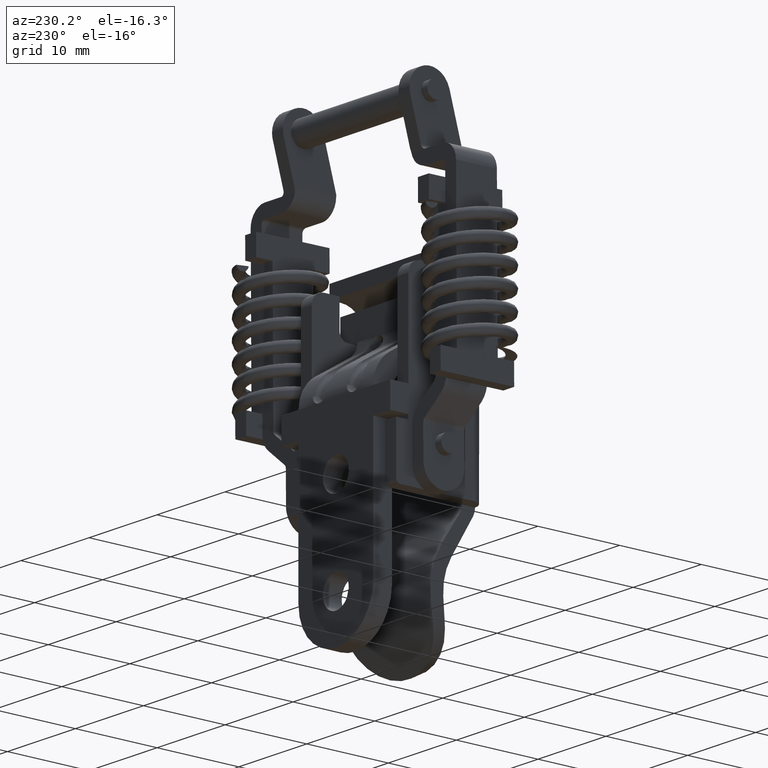
[diagram: clean part render]
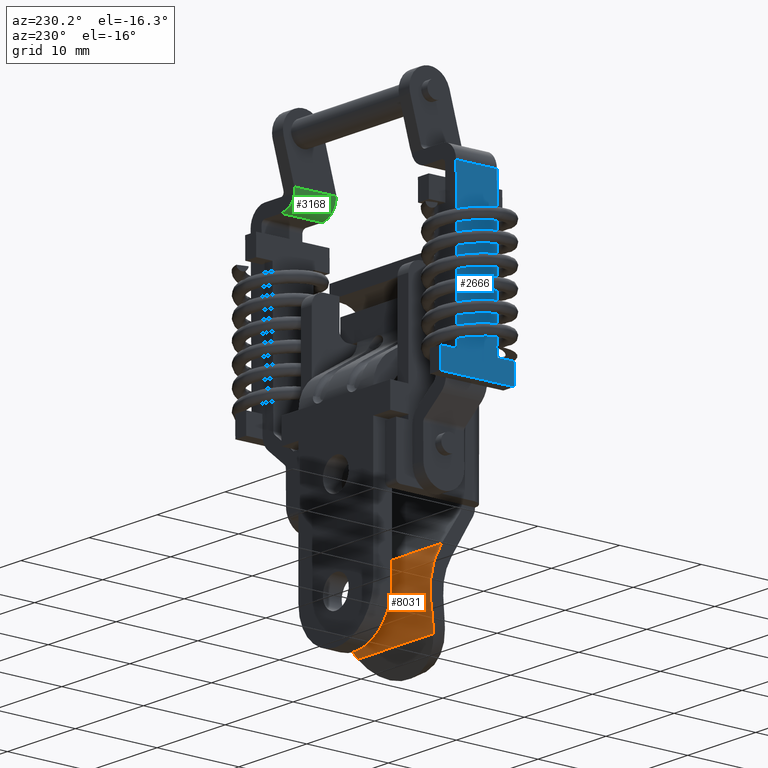
[diagram: same view with three faces highlighted in distinct colors, each labeled with its STEP entity id]
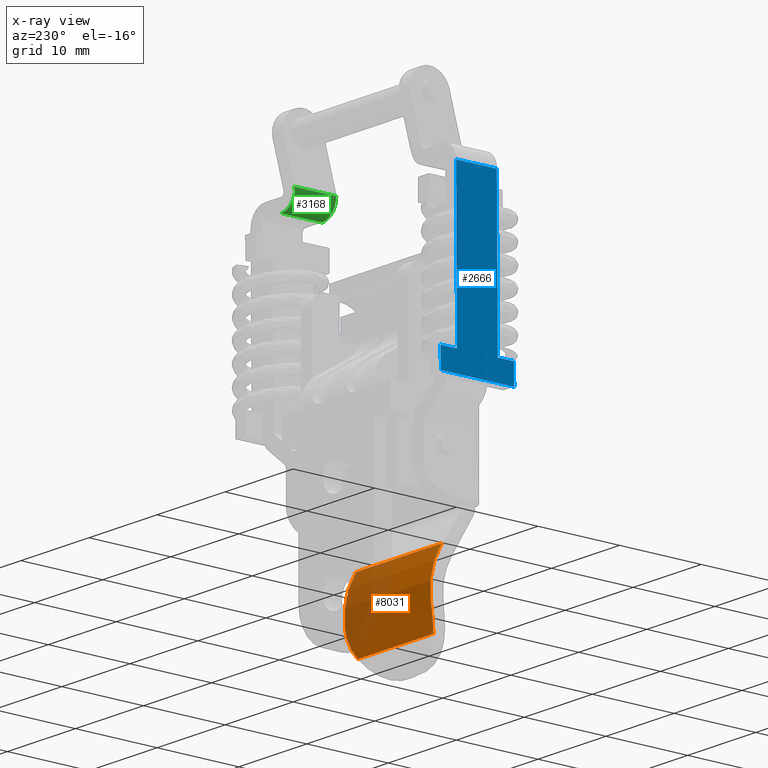
[diagram: x-ray of the same camera — body ghosted, the three highlighted faces saturated]
A machine part, auxiliary view with three faces highlighted in distinct colors.
The next image is the same camera in x-ray (body ghosted, the three faces saturated) — at least one of them is partly hidden behind the body in this view.
Their STEP definitions:

[orange] entity #8031 — the highlighted face is a freeform B-spline surface patch.
#7801=CARTESIAN_POINT('',(-3.283650800035020,6.300000000000000,-48.546751897235403));
#7802=VERTEX_POINT('',#7801);
#7808=CARTESIAN_POINT('',(-4.209000000000000,5.567243773099740,-51.392000000000003));
#7809=VERTEX_POINT('',#7808);
#7810=CARTESIAN_POINT('',(-4.209000000000000,5.567243773099740,-51.392000000000003));
#7811=CARTESIAN_POINT('',(-4.099980144908136,5.690109737714369,-51.187250329294123));
#7812=CARTESIAN_POINT('',(-3.996962484143927,5.797065620105241,-50.973829538286722));
#7813=CARTESIAN_POINT('',(-3.805472892213296,5.980570554895376,-50.529144598358272));
#7814=CARTESIAN_POINT('',(-3.716988584572358,6.057114529691956,-50.297883592218518));
#7815=CARTESIAN_POINT('',(-3.597238106038665,6.149206634351274,-49.936786550611622));
#7816=CARTESIAN_POINT('',(-3.559375151777827,6.176170126808919,-49.813606749439863));
#7817=CARTESIAN_POINT('',(-3.489283104112605,6.221852761140492,-49.565669008393712));
#7818=CARTESIAN_POINT('',(-3.456957871477868,6.240661053950343,-49.440688129181659));
#7819=CARTESIAN_POINT('',(-3.368272165083353,6.285507069354040,-49.062734353842409));
#7820=CARTESIAN_POINT('',(-3.320185256696174,6.299999999999998,-48.806757421483169));
#7821=CARTESIAN_POINT('',(-3.283650800035020,6.300000000000000,-48.546751897235403));
#7822=B_SPLINE_CURVE_WITH_KNOTS('',3,(#7810,#7811,#7812,#7813,#7814,#7815,#7816,#7817,#7818,#7819,#7820,#7821),.UNSPECIFIED.,.F.,.U.,(4,2,2,2,2,4),(0.0,0.250000000000003,0.500000000000006,0.625000000000005,0.750000000000003,1.0),.UNSPECIFIED.);
#7823=EDGE_CURVE('',#7809,#7802,#7822,.T.);
#7825=CARTESIAN_POINT('',(-4.209000000000000,-5.567243773099700,-51.392000000000003));
#7826=VERTEX_POINT('',#7825);
#7842=CARTESIAN_POINT('',(-3.283650800035020,-6.300000000000000,-48.546751897235403));
#7843=VERTEX_POINT('',#7842);
#7844=CARTESIAN_POINT('',(-3.283650800035020,-6.300000000000000,-48.546751897235403));
#7845=CARTESIAN_POINT('',(-3.320176788773138,-6.299999999999998,-48.806697157639952));
#7846=CARTESIAN_POINT('',(-3.368136890847287,-6.285510691900595,-49.061821797387140));
#7847=CARTESIAN_POINT('',(-3.485488667315838,-6.226297927023934,-49.562611167016541));
#7848=CARTESIAN_POINT('',(-3.554886054947209,-6.181585102689521,-49.808275953788417));
#7849=CARTESIAN_POINT('',(-3.674322108771538,-6.090017612181408,-50.169607822043702));
#7850=CARTESIAN_POINT('',(-3.716858662499530,-6.055249740474745,-50.289255863961003));
#7851=CARTESIAN_POINT('',(-3.805721367804488,-5.978181977921386,-50.523005372465221));
#7852=CARTESIAN_POINT('',(-3.852108535058014,-5.935851530413216,-50.637356497556951));
#7853=CARTESIAN_POINT('',(-3.996573652063844,-5.797493368032329,-50.973098593636330));
#7854=CARTESIAN_POINT('',(-4.099952302425077,-5.690141116342938,-51.187198038459293));
#7855=CARTESIAN_POINT('',(-4.209000000000000,-5.567243773099750,-51.392000000000003));
#7856=B_SPLINE_CURVE_WITH_KNOTS('',3,(#7844,#7845,#7846,#7847,#7848,#7849,#7850,#7851,#7852,#7853,#7854,#7855),.UNSPECIFIED.,.F.,.U.,(4,2,2,2,2,4),(0.0,0.249999999999997,0.499999999999994,0.624999999999995,0.749999999999997,1.0),.UNSPECIFIED.);
#7857=EDGE_CURVE('',#7843,#7826,#7856,.T.);
#7899=CARTESIAN_POINT('',(-4.620010834749680,-6.300000000000000,-42.616314338922599));
#7900=VERTEX_POINT('',#7899);
#7901=CARTESIAN_POINT('',(-3.283650800035020,-6.300000000000000,-48.546751897235403));
#7902=CARTESIAN_POINT('',(-2.831522888872942,-6.300000000000000,-45.329083829552431));
#7903=CARTESIAN_POINT('',(-4.620010834749678,-6.300000000000000,-42.616314338922599));
#7911=(BOUNDED_CURVE()B_SPLINE_CURVE(2,(#7901,#7902,#7903),.UNSPECIFIED.,.F.,.U.)CURVE()GEOMETRIC_REPRESENTATION_ITEM()QUASI_UNIFORM_CURVE()RATIONAL_B_SPLINE_CURVE((1.0,0.935460185949328,1.0))REPRESENTATION_ITEM(''));
#7912=EDGE_CURVE('',#7843,#7900,#7911,.T.);
#7952=CARTESIAN_POINT('',(-4.620010834749680,6.300000000000000,-42.616314338922599));
#7953=VERTEX_POINT('',#7952);
#7959=CARTESIAN_POINT('',(-3.283650800035020,6.300000000000000,-48.546751897235403));
#7960=CARTESIAN_POINT('',(-2.831522888872942,6.300000000000000,-45.329083829552431));
#7961=CARTESIAN_POINT('',(-4.620010834749678,6.300000000000000,-42.616314338922599));
#7969=(BOUNDED_CURVE()B_SPLINE_CURVE(2,(#7959,#7960,#7961),.UNSPECIFIED.,.F.,.U.)CURVE()GEOMETRIC_REPRESENTATION_ITEM()QUASI_UNIFORM_CURVE()RATIONAL_B_SPLINE_CURVE((1.0,0.935460185949328,1.0))REPRESENTATION_ITEM(''));
#7970=EDGE_CURVE('',#7802,#7953,#7969,.T.);
#7997=CARTESIAN_POINT('',(-4.620010834749680,6.300000000000000,-42.616314338922599));
#7998=CARTESIAN_POINT('',(-4.620010834749680,-6.300000000000000,-42.616314338922599));
#7999=QUASI_UNIFORM_CURVE('',1,(#7997,#7998),.UNSPECIFIED.,.F.,.U.);
#8000=EDGE_CURVE('',#7953,#7900,#7999,.T.);
#8005=CARTESIAN_POINT('',(-4.795722837605682,6.615000000000001,-42.359995827983290));
#8006=CARTESIAN_POINT('',(-4.795722837605682,-6.622875000000001,-42.359995827983290));
#8007=CARTESIAN_POINT('',(-1.529054539235270,6.615000000000001,-46.945324491567185));
#8008=CARTESIAN_POINT('',(-1.529054539235270,-6.622875000000001,-46.945324491567185));
#8009=CARTESIAN_POINT('',(-4.424776802226448,6.615000000000002,-51.773487009573365));
#8010=CARTESIAN_POINT('',(-4.424776802226448,-6.622875000000001,-51.773487009573365));
#8018=(BOUNDED_SURFACE()B_SPLINE_SURFACE(1,2,((#8005,#8007,#8009),(#8006,#8008,#8010)),.UNSPECIFIED.,.F.,.F.,.U.)B_SPLINE_SURFACE_WITH_KNOTS((2,2),(3,3),(0.0,13.237875000000001),(0.0,10.258528761009559),.UNSPECIFIED.)GEOMETRIC_REPRESENTATION_ITEM()RATIONAL_B_SPLINE_SURFACE(((1.0,0.833234961517973,0.991811326706241),(1.0,0.833234961517973,0.991811326706241)))REPRESENTATION_ITEM('')SURFACE());
#8019=CARTESIAN_POINT('',(-4.209000000000000,5.567243773099740,-51.392000000000003));
#8020=CARTESIAN_POINT('',(-4.209000000000000,-5.567243773099700,-51.392000000000003));
#8021=QUASI_UNIFORM_CURVE('',1,(#8019,#8020),.UNSPECIFIED.,.F.,.U.);
#8022=EDGE_CURVE('',#7809,#7826,#8021,.T.);
#8023=ORIENTED_EDGE('',*,*,#8022,.F.);
#8024=ORIENTED_EDGE('',*,*,#7823,.T.);
#8025=ORIENTED_EDGE('',*,*,#7970,.T.);
#8026=ORIENTED_EDGE('',*,*,#8000,.T.);
#8027=ORIENTED_EDGE('',*,*,#7912,.F.);
#8028=ORIENTED_EDGE('',*,*,#7857,.T.);
#8029=EDGE_LOOP('',(#8023,#8024,#8025,#8026,#8027,#8028));
#8030=FACE_OUTER_BOUND('',#8029,.T.);
#8031=ADVANCED_FACE('',(#8030),#8018,.T.);

[blue] entity #2666 — the highlighted face is a freeform B-spline surface patch.
#1992=CARTESIAN_POINT('',(1.000002172528972,15.100000000000000,-7.978975607681000));
#1993=VERTEX_POINT('',#1992);
#2009=CARTESIAN_POINT('',(-3.999997827471070,15.100000000000000,-7.978975607681000));
#2010=VERTEX_POINT('',#2009);
#2011=CARTESIAN_POINT('',(-3.999997827471070,15.100000000000000,-7.978975607681000));
#2012=CARTESIAN_POINT('',(1.000002172528972,15.100000000000000,-7.978975607681000));
#2013=QUASI_UNIFORM_CURVE('',1,(#2011,#2012),.UNSPECIFIED.,.F.,.U.);
#2014=EDGE_CURVE('',#2010,#1993,#2013,.T.);
#2291=CARTESIAN_POINT('',(1.000002172528972,15.100000000000000,-26.479055035836300));
#2292=VERTEX_POINT('',#2291);
#2298=CARTESIAN_POINT('',(1.000002172528972,15.100000000000000,-26.479055035836300));
#2299=CARTESIAN_POINT('',(1.000002172528972,15.100000000000000,-7.978975607681000));
#2300=QUASI_UNIFORM_CURVE('',1,(#2298,#2299),.UNSPECIFIED.,.F.,.U.);
#2301=EDGE_CURVE('',#2292,#1993,#2300,.T.);
#2317=CARTESIAN_POINT('',(3.000002172529030,15.100000000000000,-26.479179916867849));
#2318=VERTEX_POINT('',#2317);
#2319=CARTESIAN_POINT('',(3.000002172529030,15.100000000000000,-26.479179916867849));
#2320=CARTESIAN_POINT('',(1.000002172528972,15.100000000000000,-26.479055035836300));
#2321=QUASI_UNIFORM_CURVE('',1,(#2319,#2320),.UNSPECIFIED.,.F.,.U.);
#2322=EDGE_CURVE('',#2318,#2292,#2321,.T.);
#2443=CARTESIAN_POINT('',(-5.999997827471050,15.100000000000000,-28.978617649265150));
#2444=VERTEX_POINT('',#2443);
#2450=CARTESIAN_POINT('',(3.000002172528960,15.100000000000000,-28.978617649265150));
#2451=VERTEX_POINT('',#2450);
#2452=CARTESIAN_POINT('',(-5.999997827471050,15.100000000000000,-28.978617649265150));
#2453=CARTESIAN_POINT('',(3.000002172528960,15.100000000000000,-28.978617649265150));
#2454=QUASI_UNIFORM_CURVE('',1,(#2452,#2453),.UNSPECIFIED.,.F.,.U.);
#2455=EDGE_CURVE('',#2444,#2451,#2454,.T.);
#2477=CARTESIAN_POINT('',(-5.999997827471050,15.100000000000000,-26.478617982915900));
#2478=VERTEX_POINT('',#2477);
#2484=CARTESIAN_POINT('',(-5.999997827471050,15.100000000000000,-26.478617982915900));
#2485=CARTESIAN_POINT('',(-5.999997827471050,15.100000000000000,-28.978617649265150));
#2486=QUASI_UNIFORM_CURVE('',1,(#2484,#2485),.UNSPECIFIED.,.F.,.U.);
#2487=EDGE_CURVE('',#2478,#2444,#2486,.T.);
#2505=CARTESIAN_POINT('',(-3.999997827471070,15.100000000000000,-26.478617982915900));
#2506=VERTEX_POINT('',#2505);
#2512=CARTESIAN_POINT('',(-3.999997827471070,15.100000000000000,-26.478617982915900));
#2513=CARTESIAN_POINT('',(-5.999997827471050,15.100000000000000,-26.478617982915900));
#2514=QUASI_UNIFORM_CURVE('',1,(#2512,#2513),.UNSPECIFIED.,.F.,.U.);
#2515=EDGE_CURVE('',#2506,#2478,#2514,.T.);
#2550=CARTESIAN_POINT('',(-3.999997827471070,15.100000000000000,-7.978975607681000));
#2551=CARTESIAN_POINT('',(-3.999997827471070,15.100000000000000,-26.478617982915900));
#2552=QUASI_UNIFORM_CURVE('',1,(#2550,#2551),.UNSPECIFIED.,.F.,.U.);
#2553=EDGE_CURVE('',#2010,#2506,#2552,.T.);
#2647=CARTESIAN_POINT('',(-6.449547641056188,15.100000000000000,-6.930043800560339));
#2648=CARTESIAN_POINT('',(3.449552388445519,15.100000000000000,-6.930043800560339));
#2649=CARTESIAN_POINT('',(-6.449547641056188,15.100000000000000,-30.027548705380092));
#2650=CARTESIAN_POINT('',(3.449552388445519,15.100000000000000,-30.027548705380092));
#2651=B_SPLINE_SURFACE_WITH_KNOTS('',1,1,((#2647,#2649),(#2648,#2650)),.UNSPECIFIED.,.F.,.F.,.U.,(2,2),(2,2),(0.0,9.899100029501707),(0.0,23.097504904819750),.UNSPECIFIED.);
#2652=ORIENTED_EDGE('',*,*,#2553,.F.);
#2653=ORIENTED_EDGE('',*,*,#2014,.T.);
#2654=ORIENTED_EDGE('',*,*,#2301,.F.);
#2655=ORIENTED_EDGE('',*,*,#2322,.F.);
#2656=CARTESIAN_POINT('',(3.000002172528960,15.100000000000000,-28.978617649265150));
#2657=CARTESIAN_POINT('',(3.000002172529030,15.100000000000000,-26.479179916867849));
#2658=QUASI_UNIFORM_CURVE('',1,(#2656,#2657),.UNSPECIFIED.,.F.,.U.);
#2659=EDGE_CURVE('',#2451,#2318,#2658,.T.);
#2660=ORIENTED_EDGE('',*,*,#2659,.F.);
#2661=ORIENTED_EDGE('',*,*,#2455,.F.);
#2662=ORIENTED_EDGE('',*,*,#2487,.F.);
#2663=ORIENTED_EDGE('',*,*,#2515,.F.);
#2664=EDGE_LOOP('',(#2652,#2653,#2654,#2655,#2660,#2661,#2662,#2663));
#2665=FACE_OUTER_BOUND('',#2664,.T.);
#2666=ADVANCED_FACE('',(#2665),#2651,.T.);

[green] entity #3168 — the highlighted face is a freeform B-spline surface patch.
#3093=CARTESIAN_POINT('',(1.263037609320816,-10.654971591446539,-7.478255990129250));
#3094=CARTESIAN_POINT('',(-4.131573713390869,-10.654971591446539,-7.478255990129250));
#3095=CARTESIAN_POINT('',(1.263037609320816,-8.364009063952354,-7.538246955192159));
#3096=CARTESIAN_POINT('',(-4.131573713390869,-8.364009063952354,-7.538246955192159));
#3097=CARTESIAN_POINT('',(1.263037609320816,-8.503916923314080,-5.250773674657381));
#3098=CARTESIAN_POINT('',(-4.131573713390869,-8.503916923314080,-5.250773674657381));
#3106=(BOUNDED_SURFACE()B_SPLINE_SURFACE(1,2,((#3093,#3095,#3097),(#3094,#3096,#3098)),.UNSPECIFIED.,.F.,.F.,.U.)B_SPLINE_SURFACE_WITH_KNOTS((2,2),(3,3),(0.0,5.394611322711684),(0.0,3.696088459491400),.UNSPECIFIED.)GEOMETRIC_REPRESENTATION_ITEM()RATIONAL_B_SPLINE_SURFACE(((1.0,0.675590207615660,1.0),(1.0,0.675590207615660,1.0)))REPRESENTATION_ITEM('')SURFACE());
#3107=CARTESIAN_POINT('',(1.000002172528934,-10.600000000000000,-7.478975607680580));
#3108=VERTEX_POINT('',#3107);
#3109=CARTESIAN_POINT('',(1.000002172528972,-8.560392194563061,-5.878975607680940));
#3110=VERTEX_POINT('',#3109);
#3111=CARTESIAN_POINT('',(1.000002172528934,-10.600000000000000,-7.478975607680580));
#3112=CARTESIAN_POINT('',(1.000002172528934,-8.952624464839571,-7.478975607680579));
#3113=CARTESIAN_POINT('',(1.000002172528972,-8.560392194563061,-5.878975607680940));
#3121=(BOUNDED_CURVE()B_SPLINE_CURVE(2,(#3111,#3112,#3113),.UNSPECIFIED.,.F.,.U.)CURVE()GEOMETRIC_REPRESENTATION_ITEM()QUASI_UNIFORM_CURVE()RATIONAL_B_SPLINE_CURVE((1.0,0.786795792469501,1.0))REPRESENTATION_ITEM(''));
#3122=EDGE_CURVE('',#3108,#3110,#3121,.T.);
#3123=ORIENTED_EDGE('',*,*,#3122,.F.);
#3124=CARTESIAN_POINT('',(-3.999997827471070,-10.600000000000000,-7.478975607680580));
#3125=VERTEX_POINT('',#3124);
#3126=CARTESIAN_POINT('',(-3.999997827471070,-10.600000000000000,-7.478975607680580));
#3127=CARTESIAN_POINT('',(1.000002172528934,-10.600000000000000,-7.478975607680580));
#3128=QUASI_UNIFORM_CURVE('',1,(#3126,#3127),.UNSPECIFIED.,.F.,.U.);
#3129=EDGE_CURVE('',#3125,#3108,#3128,.T.);
#3130=ORIENTED_EDGE('',*,*,#3129,.F.);
#3131=CARTESIAN_POINT('',(-3.999997827471070,-8.500000000000000,-5.378975607680580));
#3132=VERTEX_POINT('',#3131);
#3133=CARTESIAN_POINT('',(-3.999997827471070,-8.500000000000000,-5.378975607680580));
#3134=CARTESIAN_POINT('',(-3.999997827471070,-8.500000000000002,-7.478975607680581));
#3135=CARTESIAN_POINT('',(-3.999997827471070,-10.600000000000000,-7.478975607680580));
#3143=(BOUNDED_CURVE()B_SPLINE_CURVE(2,(#3133,#3134,#3135),.UNSPECIFIED.,.F.,.U.)CURVE()GEOMETRIC_REPRESENTATION_ITEM()QUASI_UNIFORM_CURVE()RATIONAL_B_SPLINE_CURVE((1.0,0.707106781186548,1.0))REPRESENTATION_ITEM(''));
#3144=EDGE_CURVE('',#3132,#3125,#3143,.T.);
#3145=ORIENTED_EDGE('',*,*,#3144,.F.);
#3146=CARTESIAN_POINT('',(1.134670891350282,-8.500000000000000,-5.378975607680580));
#3147=VERTEX_POINT('',#3146);
#3148=CARTESIAN_POINT('',(1.134670891350282,-8.500000000000000,-5.378975607680580));
#3149=CARTESIAN_POINT('',(-3.999997827471070,-8.500000000000000,-5.378975607680580));
#3150=QUASI_UNIFORM_CURVE('',1,(#3148,#3149),.UNSPECIFIED.,.F.,.U.);
#3151=EDGE_CURVE('',#3147,#3132,#3150,.T.);
#3152=ORIENTED_EDGE('',*,*,#3151,.F.);
#3153=CARTESIAN_POINT('',(1.000002172528972,-8.560392194563061,-5.878975607680940));
#3154=CARTESIAN_POINT('',(1.066354199814004,-8.500000000000000,-5.632622824845073));
#3155=CARTESIAN_POINT('',(1.134670891350282,-8.500000000000000,-5.378975607680580));
#3163=(BOUNDED_CURVE()B_SPLINE_CURVE(2,(#3153,#3154,#3155),.UNSPECIFIED.,.F.,.U.)CURVE()GEOMETRIC_REPRESENTATION_ITEM()QUASI_UNIFORM_CURVE()RATIONAL_B_SPLINE_CURVE((1.0,0.992784420736221,1.0))REPRESENTATION_ITEM(''));
#3164=EDGE_CURVE('',#3110,#3147,#3163,.T.);
#3165=ORIENTED_EDGE('',*,*,#3164,.F.);
#3166=EDGE_LOOP('',(#3123,#3130,#3145,#3152,#3165));
#3167=FACE_OUTER_BOUND('',#3166,.T.);
#3168=ADVANCED_FACE('',(#3167),#3106,.T.);